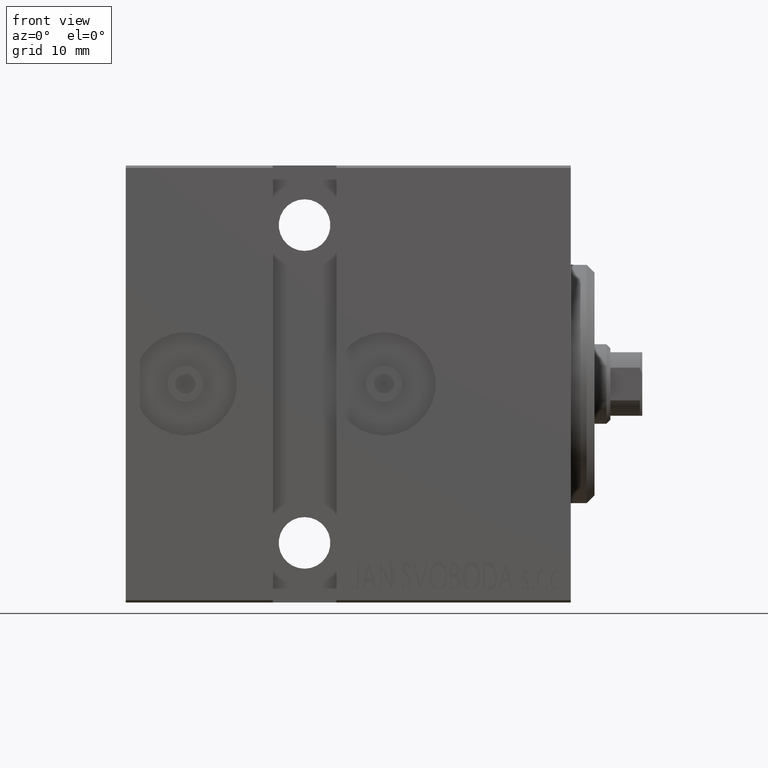
[diagram: clean part render]
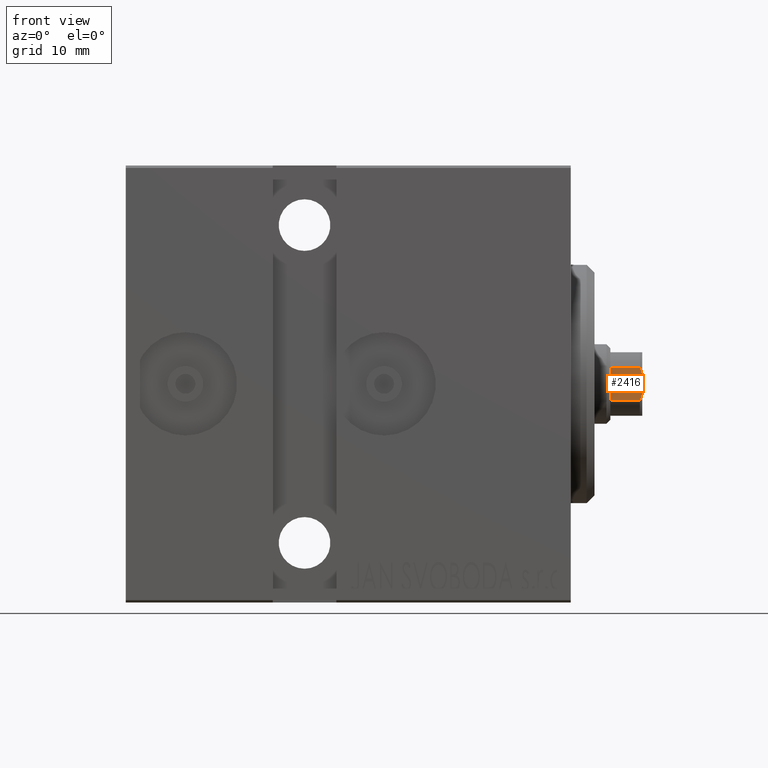
[diagram: same view with one face highlighted and labeled with its STEP entity id]
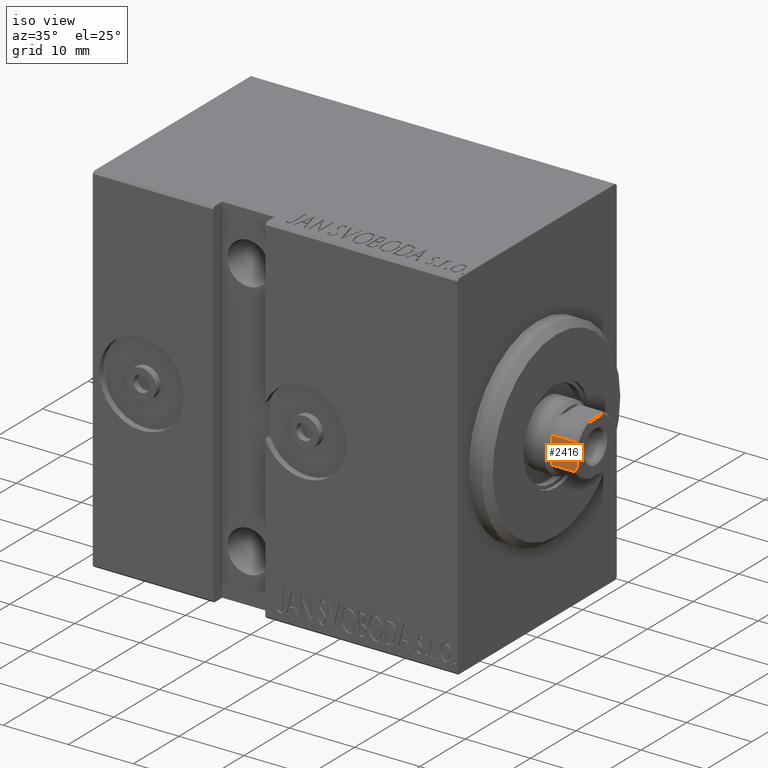
[diagram: same view with one face highlighted and labeled with its STEP entity id]
A machine part, front view. The second image highlights one B-rep face of the part: STEP entity #2416.
A second angle (iso view) of the same face is appended — the face is thin or edge-on in the first view.
In plain terms, the highlighted planar face has unit normal (0, 1, 0).
Its self-contained STEP definition (entity closure, byte-faithful):
#307 = B_SPLINE_CURVE_WITH_KNOTS ( 'NONE', 3,
 ( #38464, #35419, #5861, #32143 ),
 .UNSPECIFIED., .F., .F.,
 ( 4, 4 ),
 ( 0.000000000000000000, 0.0008365694753111217394 ),
 .UNSPECIFIED. ) ;
#1933 = VECTOR ( 'NONE', #7651, 1000.000000000000000 ) ;
#2295 = ORIENTED_EDGE ( 'NONE', *, *, #12220, .T. ) ;
#2416 = ADVANCED_FACE ( 'NONE', ( #8652 ), #15159, .F. ) ;
#2892 = VECTOR ( 'NONE', #37325, 1000.000000000000000 ) ;
#4026 = CARTESIAN_POINT ( 'NONE',  ( -3.999999999999998224, -4.000000000000001776, 56.00000000000000000 ) ) ;
#4081 = CARTESIAN_POINT ( 'NONE',  ( 1.280624847486517393, -4.000000000000001776, 60.00000000000000000 ) ) ;
#4574 = CARTESIAN_POINT ( 'NONE',  ( 2.061552812808831181, -3.999999999999999112, 56.00000000000002132 ) ) ;
#4588 = CARTESIAN_POINT ( 'NONE',  ( 1.280624847486517393, -4.000000000000001776, 60.00000000000000000 ) ) ;
#4613 = EDGE_CURVE ( 'NONE', #16990, #40306, #9118, .T. ) ;
#5861 = CARTESIAN_POINT ( 'NONE',  ( -1.807533033248848175, -4.000000000000001776, 59.81637226468021851 ) ) ;
#7651 = DIRECTION ( 'NONE',  ( -0.000000000000000000, -0.000000000000000000, 1.000000000000000000 ) ) ;
#8475 = CARTESIAN_POINT ( 'NONE',  ( 1.548028007149072183, -4.000000000000001776, 59.91846592129516580 ) ) ;
#8652 = FACE_OUTER_BOUND ( 'NONE', #14143, .T. ) ;
#9118 = B_SPLINE_CURVE_WITH_KNOTS ( 'NONE', 3,
 ( #27617, #11102, #8475, #4588 ),
 .UNSPECIFIED., .F., .F.,
 ( 4, 4 ),
 ( 0.000000000000000000, 0.0008365694753112034882 ),
 .UNSPECIFIED. ) ;
#10316 = DIRECTION ( 'NONE',  ( 1.000000000000000000, 0.000000000000000000, 0.000000000000000000 ) ) ;
#10370 = LINE ( 'NONE', #30360, #2892 ) ;
#11102 = CARTESIAN_POINT ( 'NONE',  ( 1.807533033248826637, -3.999999999999999112, 59.81637226468020430 ) ) ;
#12220 = EDGE_CURVE ( 'NONE', #35373, #19627, #307, .T. ) ;
#14143 = EDGE_LOOP ( 'NONE', ( #42877, #29812, #40856, #2295, #32492, #17218 ) ) ;
#14801 = CARTESIAN_POINT ( 'NONE',  ( -2.061552812808831181, -3.999999999999999112, 56.00000000000002132 ) ) ;
#15159 = PLANE ( 'NONE',  #18216 ) ;
#16082 = CARTESIAN_POINT ( 'NONE',  ( -2.061552812808831181, -3.999999999999999112, -0.001000000000001000089 ) ) ;
#16990 = VERTEX_POINT ( 'NONE', #42904 ) ;
#17218 = ORIENTED_EDGE ( 'NONE', *, *, #19314, .T. ) ;
#18216 = AXIS2_PLACEMENT_3D ( 'NONE', #19268, #21899, #28641 ) ;
#19268 = CARTESIAN_POINT ( 'NONE',  ( -3.999999999999998224, -4.000000000000001776, 60.00000000000000000 ) ) ;
#19314 = EDGE_CURVE ( 'NONE', #32855, #40027, #30532, .T. ) ;
#19627 = VERTEX_POINT ( 'NONE', #32468 ) ;
#20736 = EDGE_CURVE ( 'NONE', #40027, #16990, #40694, .T. ) ;
#21899 = DIRECTION ( 'NONE',  ( 0.000000000000000000, 1.000000000000000000, 0.000000000000000000 ) ) ;
#23118 = CARTESIAN_POINT ( 'NONE',  ( -1.280624847486591555, -4.000000000000001776, 60.00000000000000000 ) ) ;
#23274 = EDGE_CURVE ( 'NONE', #32855, #19627, #32825, .T. ) ;
#25443 = VECTOR ( 'NONE', #10316, 1000.000000000000000 ) ;
#26084 = DIRECTION ( 'NONE',  ( -0.000000000000000000, -0.000000000000000000, 1.000000000000000000 ) ) ;
#26245 = VECTOR ( 'NONE', #26084, 1000.000000000000000 ) ;
#27617 = CARTESIAN_POINT ( 'NONE',  ( 2.061552812808831181, -3.999999999999999112, 59.69999999999997442 ) ) ;
#28443 = EDGE_CURVE ( 'NONE', #35373, #40306, #10370, .T. ) ;
#28641 = DIRECTION ( 'NONE',  ( 0.000000000000000000, -0.000000000000000000, 1.000000000000000000 ) ) ;
#29812 = ORIENTED_EDGE ( 'NONE', *, *, #4613, .T. ) ;
#30360 = CARTESIAN_POINT ( 'NONE',  ( -3.999999999999998224, -4.000000000000001776, 60.00000000000000000 ) ) ;
#30532 = LINE ( 'NONE', #4026, #25443 ) ;
#32143 = CARTESIAN_POINT ( 'NONE',  ( -2.061552812808831181, -3.999999999999999112, 59.70000000000000995 ) ) ;
#32468 = CARTESIAN_POINT ( 'NONE',  ( -2.061552812808831181, -3.999999999999999112, 59.70000000000000995 ) ) ;
#32492 = ORIENTED_EDGE ( 'NONE', *, *, #23274, .F. ) ;
#32825 = LINE ( 'NONE', #16082, #26245 ) ;
#32855 = VERTEX_POINT ( 'NONE', #14801 ) ;
#35373 = VERTEX_POINT ( 'NONE', #23118 ) ;
#35419 = CARTESIAN_POINT ( 'NONE',  ( -1.548028007149119700, -4.000000000000001776, 59.91846592129517290 ) ) ;
#37325 = DIRECTION ( 'NONE',  ( 1.000000000000000000, 0.000000000000000000, 0.000000000000000000 ) ) ;
#37420 = CARTESIAN_POINT ( 'NONE',  ( 2.061552812808831181, -3.999999999999999112, -0.001000000000001000089 ) ) ;
#38464 = CARTESIAN_POINT ( 'NONE',  ( -1.280624847486591555, -4.000000000000001776, 60.00000000000000000 ) ) ;
#40027 = VERTEX_POINT ( 'NONE', #4574 ) ;
#40306 = VERTEX_POINT ( 'NONE', #4081 ) ;
#40694 = LINE ( 'NONE', #37420, #1933 ) ;
#40856 = ORIENTED_EDGE ( 'NONE', *, *, #28443, .F. ) ;
#42877 = ORIENTED_EDGE ( 'NONE', *, *, #20736, .T. ) ;
#42904 = CARTESIAN_POINT ( 'NONE',  ( 2.061552812808831181, -3.999999999999999112, 59.69999999999997442 ) ) ;